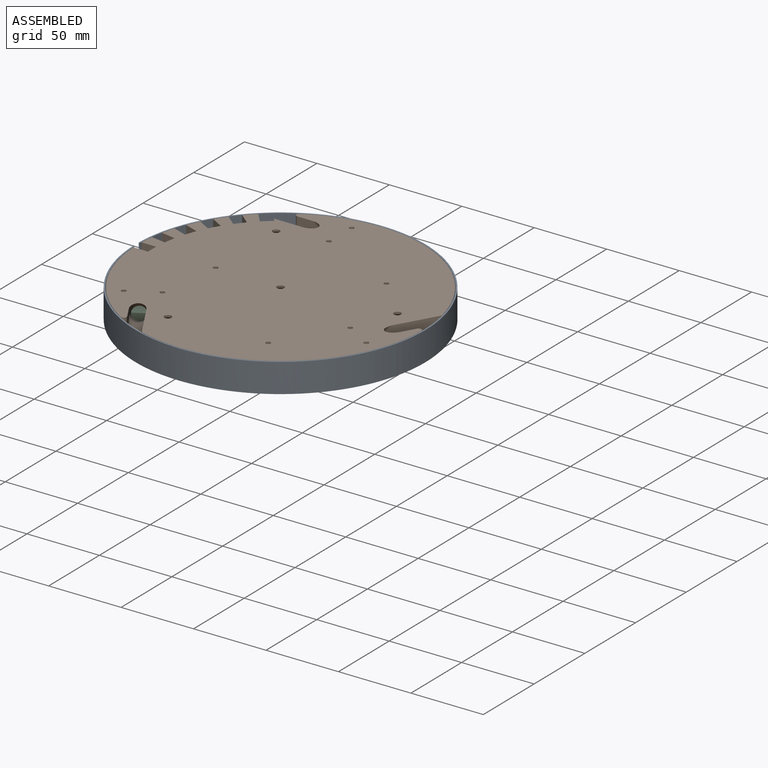
[diagram: assembled view]
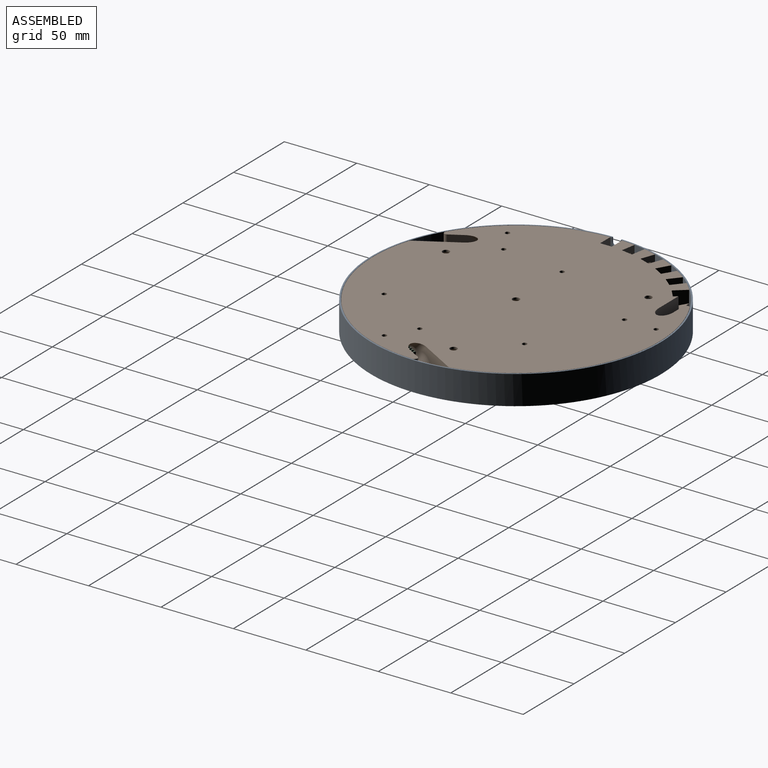
[diagram: assembled view, second angle]
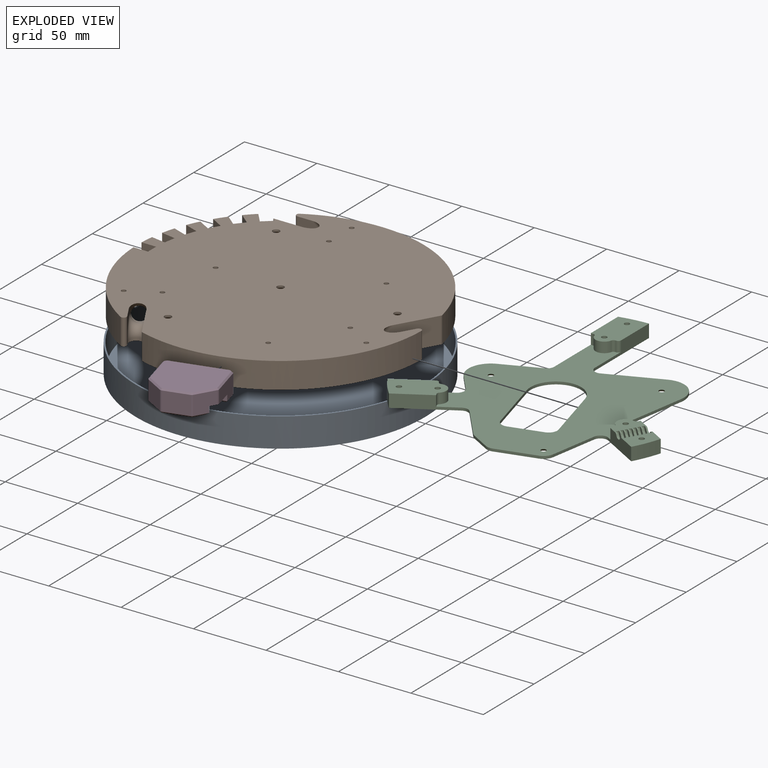
[diagram: exploded view]
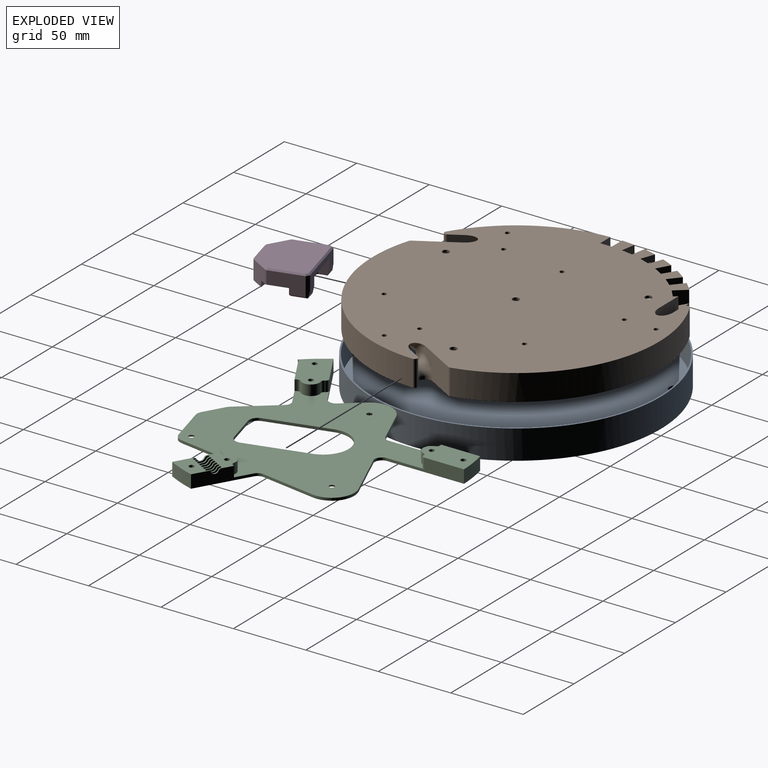
[diagram: exploded view, second angle]
FCSTD DOCUMENT  (FreeCAD 1.0R38641 +468 (Git))
Label: CircularBase
License: All rights reserved
LicenseURL: http://en.wikipedia.org/wiki/All_rights_reserved
objects: Sketcher::SketchObject×25, PartDesign::Pocket×18, PartDesign::Pad×13, PartDesign::SubShapeBinder×10, Part::FeaturePython×10, PartDesign::Hole×5, PartDesign::Fillet×4, PartDesign::PolarPattern×4, PartDesign::Revolution×3, PartDesign::Body×3, PartDesign::SubtractivePipe×2, Assembly::JointGroup×1, App::VarSet×1, App::Link×1, PartDesign::AdditivePipe×1, PartDesign::Plane×1, PartDesign::Mirrored×1, PartDesign::LinearPattern×1, Assembly::AssemblyObject×1
note: 224 computed .brp shape members not serialized (recipe doc carries the construction recipe); baked Part::Feature solids carry a one-line shape summary decoded from their .brp
EXTERNAL_REF file=ShellyDimmerGen1.FCStd obj=Body

FEATURE [Assembly::JointGroup] Joints
FEATURE [App::VarSet] VarSet
  CordDiameter = 7.4
FEATURE [Sketcher::SketchObject] Sketch012
  ArcFitTolerance = 1e-06
  AttachmentSupport = -> [XY_Plane004]
  FullyConstrained = true
  MakeInternals = false
  MapMode = 5
  sketch-geometry (1):
    g0: Circle CenterX=0 CenterY=0 CenterZ=0 NormalX=0 NormalY=0 NormalZ=1 AngleXU=0 Radius=98.8
  constraints (2):
    c: Diameter(g0) = 197.6
    c: Coincident(g0,g-1)
FEATURE [PartDesign::Pad] Pad009
  Direction = (0,0,1)
  Length = 4
  Length2 = 10
  Profile = -> Sketch012
  ReferenceAxis = -> Sketch012 [N_Axis]
  Refine = true
  Reversed = true
  Suppressed = false
  Type = 0
FEATURE [Sketcher::SketchObject] Sketch013
  ArcFitTolerance = 1e-06
  AttachmentOffset = pos=(90,0,0) rot=(0,1,0;1.0472rad)
  AttachmentSupport = -> [XZ_Plane004]
  FullyConstrained = false
  MakeInternals = false
  MapMode = 5
  Placement = pos=(90,0,0) rot=(0.774597,0.447214,0.447214;1.82348rad)
  expr: Constraints[8] = 5 mm
  expr: Constraints[9] = 4 mm + 5 mm
  sketch-geometry (12):
    g0: LineSegment StartX=0 StartY=-18 StartZ=0 EndX=0 EndY=-16 EndZ=0
    g1: ArcOfCircle CenterX=-11 CenterY=-16 CenterZ=0 NormalX=0 NormalY=0 NormalZ=1 AngleXU=0 Radius=11 StartAngle=0 EndAngle=2.24086
    g2: ArcOfCircle CenterX=-22.4891 CenterY=-1.5 CenterZ=0 NormalX=0 NormalY=0 NormalZ=1 AngleXU=0 Radius=7.5 StartAngle=4.71239 EndAngle=5.38245
    g3: LineSegment StartX=-22.4891 StartY=-9 StartZ=0 EndX=-42.4891 EndY=-9 EndZ=0
    g4: LineSegment StartX=0 StartY=-18 StartZ=0 EndX=36.1215 EndY=-18 EndZ=0
    g5: LineSegment StartX=36.1215 StartY=-18 StartZ=0 EndX=35.1191 EndY=0 EndZ=0
    g6: LineSegment StartX=35.1191 StartY=0 StartZ=0 EndX=-8.51939 EndY=-2.7e-15 EndZ=0
    g7: LineSegment StartX=-17.8314 StartY=-7.37838 StartZ=0 EndX=-8.51939 EndY=-2.7e-15 EndZ=0
    g8: LineSegment StartX=-42.4891 StartY=-18 StartZ=0 EndX=-42.4891 EndY=-10 EndZ=0
    g9: LineSegment StartX=-22 StartY=-10 StartZ=0 EndX=-42.4891 EndY=-10 EndZ=0
    g10: LineSegment StartX=-22 StartY=-10 StartZ=0 EndX=-22 EndY=-18 EndZ=0
    g11: LineSegment StartX=-22 StartY=-18 StartZ=0 EndX=-42.4891 EndY=-18 EndZ=0
  constraints (32):
    c: Vertical(g0)
    c: Horizontal(g3)
    c: Distance(g0,g0) = 2
    c: Tangent(g3,g2) = 1.5708
    c: DistanceX(g3,g3) = 20
    c: DistanceY(g0,g-1) = 18
    c: PointOnObject(g0,g-2)
    c: Diameter(g2) = 15
    c: Distance(g1,g-1) = 5
    c: DistanceY(g0,g3) = 9
    c: Tangent(g0,g1) = -1.5708
    c: Tangent(g2,g1) = 1.5708
    c: Coincident(g4,g0)
    c: Horizontal(g4)
    c: Coincident(g5,g4)
    c: PointOnObject(g5,g-1)
    c: Coincident(g6,g5)
    c: PointOnObject(g6,g-1)
    c: Coincident(g7,g6)
    c: Tangent(g7,g1) = 1.5708
    c: Vertical(g8)
    c: PointOnObject(g3,g8)
    c: DistanceY(g8,g3) = 1
    c: Coincident(g9,g8)
    c: Horizontal(g9)
    c: Coincident(g11,g10)
    c: Coincident(g11,g8)
    c: Horizontal(g11)
    c: Vertical(g10)
    c: PointOnObject(g0,g11)
    c: Coincident(g9,g10)
    c: DistanceX(g10,g0) = 22
FEATURE [Sketcher::SketchObject] Sketch014
  ArcFitTolerance = 1e-06
  AttachmentSupport = -> [Pad009]
  ExternalGeometry = -> [Pad009,Sketch013]
  FullyConstrained = true
  MakeInternals = false
  MapMode = 5
  Placement = pos=(0,0,-4) rot=(1,0,0;3.14159rad)
  sketch-geometry (13):
    g0: LineSegment StartX=58.3631 StartY=30.7967 StartZ=0 EndX=60.4854 EndY=27.1208 EndZ=0
    g1: LineSegment StartX=84.1922 StartY=45.7091 StartZ=0 EndX=58.3631 EndY=30.7967 EndZ=0
    g2: ArcOfCircle CenterX=0 CenterY=0 CenterZ=0 NormalX=0 NormalY=0 NormalZ=1 AngleXU=0 Radius=95.8 StartAngle=0.497386 EndAngle=1.80639
    g3: ArcOfCircle CenterX=63.4854 CenterY=21.9246 CenterZ=0 NormalX=0 NormalY=0 NormalZ=1 AngleXU=0 Radius=6 StartAngle=2.0944 EndAngle=5.23599
    g4: LineSegment StartX=66.4854 StartY=16.7285 StartZ=0 EndX=93.8944 EndY=-30.7453 EndZ=0
    g5: Circle [constr] CenterX=63.4854 CenterY=21.9246 CenterZ=0 NormalX=0 NormalY=0 NormalZ=1 AngleXU=0 Radius=1.5
    g6: LineSegment [constr] StartX=73.8777 StartY=27.9246 StartZ=0 EndX=63.4854 EndY=21.9246 EndZ=0
    g7: ArcOfCircle CenterX=0 CenterY=0 CenterZ=0 NormalX=0 NormalY=0 NormalZ=1 AngleXU=0 Radius=98.8 StartAngle=5.96674 EndAngle=8.06114
    g8: LineSegment StartX=-20.321 StartY=96.6876 StartZ=0 EndX=-22.3613 EndY=93.1537 EndZ=0
    g9: LineSegment [constr] StartX=0 StartY=0 StartZ=0 EndX=93.8944 EndY=-30.7453 EndZ=0
    g10: LineSegment [constr] StartX=0 StartY=0 StartZ=0 EndX=-20.321 EndY=96.6876 EndZ=0
    g11: LineSegment [constr] StartX=0 StartY=0 StartZ=0 EndX=58.3631 EndY=30.7967 EndZ=0
    g12: LineSegment [constr] StartX=0 StartY=0 StartZ=0 EndX=-55.8523 EndY=35.1456 EndZ=0
  constraints (36):
    c: Coincident(g1,g0)
    c: Perpendicular(g-4,g1)
    c: Perpendicular(g0,g1)
    c: Coincident(g1,g2)
    c: Coincident(g2,g-1)
    c: PointOnObject(g-5,g1)
    c: Distance(g0,g-5) = 12
    c: PointOnObject(g3,g0)
    c: PointOnObject(g3,g0)
    c: Coincident(g3,g0)
    c: Coincident(g4,g3)
    c: Perpendicular(g3,g4)
    c: Radius(g3) = 6
    c: Coincident(g5,g3)
    c: Diameter(g5) = 3
    c: Symmetric(g-5,g-5,g6)
    c: Coincident(g6,g3)
    c: Perpendicular(g-5,g6)
    c: Coincident(g7,g2)
    c: Coincident(g7,g4)
    c: PointOnObject(g4,g-3)
    c: Coincident(g8,g7)
    c: Coincident(g8,g2)
    c: Coincident(g9,g2)
    c: Coincident(g9,g4)
    c: Angle(g4,g9) = 0.730755  'Reference'
    c: Coincident(g10,g2)
    c: Coincident(g10,g7)
    c: Angle(g9,g10) = 2.0944
    c: Distance(g1,g-3) = 3
    c: Coincident(g11,g2)
    c: Coincident(g11,g0)
    c: Coincident(g12,g2)
    c: Angle(g11,g12) = 2.0944
    c: Equal(g11,g12)
    c: PointOnObject(g12,g8)
FEATURE [PartDesign::Pad] Pad010
  BaseFeature = -> Pad009
  Direction = (0,0,-1)
  Length = 14
  Length2 = 10
  Profile = -> Sketch014
  ReferenceAxis = -> Sketch014 [N_Axis]
  Refine = true
  Suppressed = false
  Type = 0
  UpToShape = -> [Sketch013]
FEATURE [Sketcher::SketchObject] Sketch015
  ArcFitTolerance = 1e-06
  AttachmentSupport = -> [Pad010]
  ExternalGeometry = -> [Sketch013]
  FullyConstrained = true
  MakeInternals = false
  MapMode = 5
  Placement = pos=(1.25544,2.17448,0) rot=(0.935113,-0.250563,-0.250563;1.63783rad)
  sketch-geometry (1):
    g0: Circle CenterX=77.9423 CenterY=-9 CenterZ=0 NormalX=0 NormalY=0 NormalZ=1 AngleXU=0 Radius=5
  constraints (2):
    c: Coincident(g0,g-3)
    c: Diameter(g0) = 10
FEATURE [PartDesign::SubtractivePipe] SubtractivePipe004
  AuxilleryCurvelinear = true
  AuxillerySpineTangent = false
  BaseFeature = -> Pad010
  Binormal = (0,0,0)
  Mode = 0
  Profile = -> Sketch015
  Refine = true
  Spine = -> Sketch013 [Edge8,Edge7,Edge1]
  SpineTangent = false
  Suppressed = false
  Transformation = 0
  Transition = 0
FEATURE [PartDesign::SubtractivePipe] SubtractivePipe005
  AuxilleryCurvelinear = true
  AuxillerySpineTangent = false
  BaseFeature = -> SubtractivePipe004
  Binormal = (0,0,0)
  Mode = 0
  Profile = -> Sketch015
  Refine = true
  Spine = -> Sketch013 [Edge8,Edge7,Edge6,Edge5]
  SpineTangent = false
  Suppressed = false
  Transformation = 0
  Transition = 0
FEATURE [PartDesign::Pocket] Pocket019
  BaseFeature = -> SubtractivePipe005
  Direction = (-0.866025,0.5,-1e-16)
  Length = 10
  Length2 = 5
  Midplane = true
  Profile = -> Sketch013 [Edge1,Edge6,Edge2,Edge5,Edge4,Edge3]
  ReferenceAxis = -> Sketch013 [N_Axis]
  Refine = true
  Suppressed = false
  Type = 0
  expr: Length = 10
FEATURE [Sketcher::SketchObject] Sketch019
  ArcFitTolerance = 1e-06
  AttachmentSupport = -> [Pocket019]
  ExternalGeometry = -> [Pocket019]
  FullyConstrained = true
  MakeInternals = false
  MapMode = 5
  Placement = pos=(0,0,-18) rot=(1,0,0;3.14159rad)
  sketch-geometry (6):
    g0: LineSegment StartX=58.3631 StartY=30.7967 StartZ=0 EndX=84.1922 EndY=45.7091 EndZ=0
    g1: LineSegment StartX=68.3631 StartY=13.4762 StartZ=0 EndX=91.8977 EndY=27.0638 EndZ=0
    g2: ArcOfCircle CenterX=0 CenterY=0 CenterZ=0 NormalX=0 NormalY=0 NormalZ=1 AngleXU=0 Radius=95.8 StartAngle=0.286403 EndAngle=0.497386
    g3: ArcOfCircle CenterX=63.4854 CenterY=21.9246 CenterZ=0 NormalX=0 NormalY=0 NormalZ=1 AngleXU=0 Radius=6 StartAngle=2.09439 EndAngle=5.23599
    g4: LineSegment StartX=58.3631 StartY=30.7967 StartZ=0 EndX=60.4854 EndY=27.1208 EndZ=0
    g5: LineSegment StartX=66.4854 StartY=16.7285 StartZ=0 EndX=68.3631 EndY=13.4762 EndZ=0
  constraints (15):
    c: Coincident(g2,g-1)
    c: Coincident(g2,g1)
    c: Coincident(g2,g0)
    c: Coincident(g4,g0)
    c: Coincident(g4,g3)
    c: Coincident(g5,g3)
    c: Coincident(g5,g1)
    c: Coincident(g0,g-4)
    c: Coincident(g3,g-5)
    c: Coincident(g0,g-4)
    c: Coincident(g3,g-6)
    c: PointOnObject(g1,g-6)
    c: Equal(g-5,g3)
    c: PointOnObject(g-7,g1)
    c: PointOnObject(g-7,g1)
FEATURE [PartDesign::Pocket] Pocket
  BaseFeature = -> Pocket019
  Direction = (0,0,1)
  Length = 9
  Length2 = 5
  Profile = -> Sketch019
  ReferenceAxis = -> Sketch019 [N_Axis]
  Refine = true
  Suppressed = false
  Type = 0
  expr: Length = 4 mm + 5 mm
FEATURE [Sketcher::SketchObject] Sketch018
  ArcFitTolerance = 1e-06
  AttachmentSupport = -> [Pocket]
  ExternalGeometry = -> [Pocket]
  FullyConstrained = true
  MakeInternals = false
  MapMode = 5
  Placement = pos=(0,0,-4) rot=(1,0,0;3.14159rad)
  sketch-geometry (3):
    g0: LineSegment [constr] StartX=94.3301 StartY=2.5 StartZ=0 EndX=74.4115 EndY=-9 EndZ=0
    g1: Circle CenterX=74.4115 CenterY=-9 CenterZ=0 NormalX=0 NormalY=0 NormalZ=1 AngleXU=0 Radius=6
    g2: Circle CenterX=0 CenterY=0 CenterZ=0 NormalX=0 NormalY=0 NormalZ=1 AngleXU=0 Radius=6
  constraints (7):
    c: Diameter(g1) = 12
    c: Coincident(g1,g0)
    c: Coincident(g0,g-3)
    c: PointOnObject(g-3,g0)
    c: Coincident(g2,g-1)
    c: Equal(g2,g1)
    c: Tangent(g1,g-4)
FEATURE [Sketcher::SketchObject] Sketch020
  ArcFitTolerance = 1e-06
  AttachmentSupport = -> [Pocket]
  ExternalGeometry = -> [Pocket]
  FullyConstrained = false
  MakeInternals = false
  MapMode = 5
  Placement = pos=(0,0,-9) rot=(1,0,0;3.14159rad)
  sketch-geometry (5):
    g0: GeomPoint X=68.4685 Y=25.2665 Z=0
    g1: GeomPoint X=78.0856 Y=30.6364 Z=0
    g2: LineSegment [constr] StartX=78.0856 StartY=30.6364 StartZ=0 EndX=82.4157 EndY=33.1364 EndZ=0
    g3: Circle CenterX=63.4854 CenterY=21.9246 CenterZ=0 NormalX=0 NormalY=0 NormalZ=1 AngleXU=0 Radius=1.5
    g4: Circle CenterX=82.4157 CenterY=33.1364 CenterZ=0 NormalX=0 NormalY=0 NormalZ=1 AngleXU=0 Radius=1.5
  constraints (7):
    c: Coincident(g2,g1)
    c: Coincident(g4,g2)
    c: Equal(g4,g3)
    c: Symmetric(g-3,g-3,g1)
    c: Perpendicular(g-3,g2)
    c: Coincident(g-4,g3)
    c: Distance(g2,g2) = 5
FEATURE [PartDesign::Hole] Hole
  BaseFeature = -> Pocket
  CustomThreadClearance = 0
  Depth = 565.656
  DepthType = 1
  Diameter = 3.2
  DrillForDepth = false
  DrillPoint = 1
  DrillPointAngle = 118
  HoleCutCountersinkAngle = 90
  HoleCutCustomValues = false
  HoleCutDepth = 0
  HoleCutDiameter = 6.1
  HoleCutType = 0
  ModelThread = false
  Profile = -> Sketch020
  Refine = true
  Suppressed = false
  Tapered = false
  TaperedAngle = 90
  ThreadClass = 0
  ThreadDepth = 565.656
  ThreadDepthType = 0
  ThreadDirection = 0
  ThreadFit = 1
  ThreadSize = 9
  ThreadType = 1
  Threaded = false
  UseCustomThreadClearance = false
FEATURE [Sketcher::SketchObject] Sketch026
  ArcFitTolerance = 1e-06
  AttachmentSupport = -> [XY_Plane]
  FullyConstrained = true
  MakeInternals = false
  MapMode = 5
  sketch-geometry (2):
    g0: Circle CenterX=0 CenterY=0 CenterZ=0 NormalX=0 NormalY=0 NormalZ=1 AngleXU=0 Radius=99
    g1: Circle CenterX=0 CenterY=0 CenterZ=0 NormalX=0 NormalY=0 NormalZ=1 AngleXU=0 Radius=100
  constraints (4):
    c: Coincident(g0,g-1)
    c: Coincident(g1,g0)
    c: Diameter(g0) = 198
    c: Diameter(g1) = 200
FEATURE [PartDesign::Pad] Pad014
  Direction = (0,0,1)
  Length = 18.1
  Length2 = 10
  Profile = -> Sketch026
  ReferenceAxis = -> Sketch026 [N_Axis]
  Refine = true
  Reversed = true
  Suppressed = false
  Type = 0
FEATURE [PartDesign::Pad] Pad015
  BaseFeature = -> Pad014
  Direction = (0,0,1)
  Length = 2
  Length2 = 10
  Profile = -> Pad014 [Edge3]
  Refine = true
  Reversed = true
  Suppressed = false
  Type = 0
FEATURE [Sketcher::SketchObject] Sketch028
  ArcFitTolerance = 1e-06
  AttachmentOffset = pos=(0,2,-100) rot=(1,0,0;0.174533rad)
  AttachmentSupport = -> [YZ_Plane004]
  FullyConstrained = true
  MakeInternals = false
  MapMode = 5
  Placement = pos=(-100,0,2) rot=(0.60812,0.60812,0.510274;2.19793rad)
  sketch-geometry (4):
    g0: LineSegment StartX=-4 StartY=0 StartZ=0 EndX=-4 EndY=-10 EndZ=0
    g1: LineSegment StartX=-4 StartY=-10 StartZ=0 EndX=4 EndY=-10 EndZ=0
    g2: LineSegment StartX=4 StartY=-10 StartZ=0 EndX=4 EndY=0 EndZ=0
    g3: LineSegment StartX=4 StartY=0 StartZ=0 EndX=-4 EndY=0 EndZ=0
  constraints (11):
    c: Coincident(g0,g1)
    c: Coincident(g1,g2)
    c: Coincident(g2,g3)
    c: Vertical(g0)
    c: Vertical(g2)
    c: Horizontal(g1)
    c: Horizontal(g3)
    c: Distance(g0,g2) = 8
    c: Distance(g1,g3) = 10
    c: Coincident(g3,g0)
    c: Symmetric(g0,g2,g-1)
FEATURE [Sketcher::SketchObject] Sketch029
  ArcFitTolerance = 1e-06
  AttachmentSupport = -> [YZ_Plane]
  FullyConstrained = true
  MakeInternals = false
  MapMode = 5
  Placement = pos=(0,0,0) rot=(0.57735,0.57735,0.57735;2.0944rad)
  sketch-geometry (5):
    g0: ArcOfCircle CenterX=1 CenterY=-3 CenterZ=0 NormalX=0 NormalY=0 NormalZ=1 AngleXU=0 Radius=2 StartAngle=4.71239 EndAngle=6.28319
    g1: LineSegment StartX=1 StartY=-5 StartZ=0 EndX=0 EndY=-5 EndZ=0
    g2: LineSegment StartX=3 StartY=-3 StartZ=0 EndX=3 EndY=0 EndZ=0
    g3: LineSegment StartX=0 StartY=-5 StartZ=0 EndX=0 EndY=0 EndZ=0
    g4: LineSegment StartX=0 StartY=0 StartZ=0 EndX=3 EndY=0 EndZ=0
  constraints (13):
    c: PointOnObject(g1,g-2)
    c: PointOnObject(g2,g-1)
    c: Vertical(g2)
    c: Tangent(g1,g0) = 1.5708
    c: Tangent(g2,g0) = -1.5708
    c: Coincident(g3,g1)
    c: Coincident(g3,g-1)
    c: Coincident(g4,g3)
    c: Coincident(g4,g2)
    c: Horizontal(g1)
    c: DistanceX(g4,g4) = 3
    c: DistanceY(g3,g3) = 5
    c: Diameter(g0) = 4
FEATURE [App::Link] Housing  label="ShellyDimmerGen1"
  LinkClaimChild = true
  LinkPlacement = pos=(9.5763,-35.7393,-1) rot=(0.991445,0.130526,0;3.14159rad)
  LinkedObject = -> <external ShellyDimmerGen1.FCStd>#Body
  Placement = pos=(9.5763,-35.7393,-1) rot=(0.991445,0.130526,0;3.14159rad)
FEATURE [Sketcher::SketchObject] Sketch033
  ArcFitTolerance = 1e-06
  FullyConstrained = true
  MakeInternals = false
  MapMode = 5
  Placement = pos=(0,0,-18.1) rot=(0,0,1;0rad)
  sketch-geometry (1):
    g0: Circle CenterX=90 CenterY=-1.69e-14 CenterZ=0 NormalX=0 NormalY=0 NormalZ=1 AngleXU=0 Radius=3.9
  constraints (2):
    c: Coincident(g0,g-3)
    c: Distance(g-3,g0) = 0.2
FEATURE [PartDesign::SubShapeBinder] Binder
  BindCopyOnChange = 0
  BindMode = 0
  ClaimChildren = false
  Context = -> Assembly [Body003.Binder.]
  Fuse = false
  MakeFace = true
  Offset = 0.3
  OffsetFill = false
  OffsetIntersection = false
  OffsetJoinType = 1
  OffsetOpenResult = false
  PartialLoad = false
  Refine = true
  Relative = true
  Support = -> [Housing[Pocket002.Edge101,Pocket002.Edge91,Pocket002.Edge95,Pocket002.Edge106,Pocket002.Edge65,Pocket002.Edge73,Pocket002.Edge76,Pocket002.Edge81]]
  _Version = 2
FEATURE [PartDesign::SubShapeBinder] Binder011
  BindCopyOnChange = 0
  BindMode = 0
  ClaimChildren = false
  Context = -> Assembly [Body003.Binder011.]
  Fuse = false
  MakeFace = true
  Offset = 2
  OffsetFill = false
  OffsetIntersection = false
  OffsetJoinType = 1
  OffsetOpenResult = false
  PartialLoad = false
  Refine = true
  Relative = true
  Support = -> [Binder]
  _Version = 2
FEATURE [PartDesign::SubShapeBinder] Binder012
  BindCopyOnChange = 0
  BindMode = 0
  ClaimChildren = false
  Context = -> Assembly [Body003.Binder012.]
  Fuse = false
  MakeFace = true
  OffsetFill = false
  OffsetIntersection = false
  OffsetJoinType = 1
  OffsetOpenResult = false
  PartialLoad = false
  Refine = true
  Relative = true
  Support = -> [Housing[Pocket002.Face1]]
  _Version = 2
FEATURE [PartDesign::SubShapeBinder] Binder013
  BindCopyOnChange = 0
  BindMode = 0
  ClaimChildren = false
  Context = -> Assembly [Body003.Binder013.]
  Fuse = false
  MakeFace = true
  OffsetFill = false
  OffsetIntersection = false
  OffsetJoinType = 1
  OffsetOpenResult = false
  PartialLoad = false
  Refine = true
  Relative = true
  Support = -> [Housing[Pocket002.Face53]]
  _Version = 2
FEATURE [Sketcher::SketchObject] Sketch
  ArcFitTolerance = 1e-06
  AttachmentSupport = -> [Hole]
  ExternalGeometry = -> [Sketch013]
  FullyConstrained = true
  MakeInternals = false
  MapMode = 5
  Placement = pos=(0,0,-18) rot=(1,0,0;3.14159rad)
  sketch-geometry (1):
    g0: Circle CenterX=84 CenterY=10.3923 CenterZ=0 NormalX=0 NormalY=0 NormalZ=1 AngleXU=0 Radius=4
  constraints (3):
    c: Diameter(g0) = 8
    c: PointOnObject(g0,g-3)
    c: Distance(g-3,g0) = 12
FEATURE [PartDesign::Pocket] Pocket049
  BaseFeature = -> Hole
  Direction = (0,0,1)
  Length = 4
  Length2 = 5
  Profile = -> Sketch
  ReferenceAxis = -> Sketch [N_Axis]
  Refine = true
  Suppressed = false
  Type = 0
FEATURE [PartDesign::Fillet] Fillet
  Base = -> Pocket049 [Edge67,Edge66,Edge40,Edge10,Edge9]
  BaseFeature = -> Pocket049
  Radius = 2
  Refine = true
  SupportTransform = false
  Suppressed = false
  UseAllEdges = false
FEATURE [PartDesign::Hole] Hole006
  BaseFeature = -> Fillet
  CustomThreadClearance = 0
  Depth = 565.618
  DepthType = 1
  Diameter = 4.8
  DrillForDepth = false
  DrillPoint = 1
  DrillPointAngle = 118
  HoleCutCountersinkAngle = 90
  HoleCutCustomValues = false
  HoleCutDepth = 0
  HoleCutDiameter = 10
  HoleCutType = 2
  ModelThread = false
  Profile = -> Sketch018
  Refine = true
  Suppressed = false
  Tapered = false
  TaperedAngle = 90
  ThreadClass = 0
  ThreadDepth = 565.618
  ThreadDepthType = 0
  ThreadDirection = 0
  ThreadFit = 2
  ThreadSize = 11
  ThreadType = 1
  Threaded = false
  UseCustomThreadClearance = false
FEATURE [PartDesign::PolarPattern] PolarPattern
  Angle = 360
  Axis = -> Sketch014 [N_Axis]
  BaseFeature = -> Hole006
  Mode = 0
  Occurrences = 3
  Offset = 120
  Originals = -> [Pad010,SubtractivePipe004,SubtractivePipe005,Pocket019,Pocket,Hole,Pocket049,Fillet,Hole006]
  Refine = true
  Suppressed = false
  TransformMode = 0
FEATURE [PartDesign::Pocket] Pocket030
  BaseFeature = -> PolarPattern
  Direction = (-0.984808,0,0.173648)
  Length = 50
  Length2 = 5
  Profile = -> Sketch028
  ReferenceAxis = -> Sketch028 [N_Axis]
  Refine = true
  Reversed = true
  Suppressed = false
  Type = 0
FEATURE [PartDesign::PolarPattern] PolarPattern004
  Angle = 360
  Axis = -> Z_Axis004
  BaseFeature = -> Pocket030
  Mode = 1
  Occurrences = 6
  Offset = 10
  Originals = -> [Pocket030]
  Refine = true
  Reversed = true
  Suppressed = false
  TransformMode = 0
FEATURE [PartDesign::Pad] Pad022
  BaseFeature = -> PolarPattern004
  Direction = (8.74228e-08,3.6e-15,1)
  Length = 10
  Length2 = 10
  Profile = -> Binder011
  Refine = true
  Suppressed = false
  Type = 3
  UpToFace = -> Binder012 [Face1]
FEATURE [PartDesign::Pocket] Pocket046
  BaseFeature = -> Pad022
  Direction = (8.74228e-08,3.6e-15,1)
  Length = 5
  Length2 = 5
  Profile = -> Binder
  Refine = true
  Reversed = true
  Suppressed = false
  Type = 1
FEATURE [PartDesign::Pocket] Pocket047
  BaseFeature = -> Pocket046
  Direction = (8.74228e-08,3.6e-15,1)
  Length = 0
  Length2 = 5
  Profile = -> Pocket046 [Face142]
  Refine = true
  Suppressed = false
  Type = 3
  UpToFace = -> Binder013 [Face1]
FEATURE [Sketcher::SketchObject] Sketch034
  ArcFitTolerance = 1e-06
  AttachmentSupport = -> [Pocket047]
  ExternalGeometry = -> [Pocket047]
  FullyConstrained = true
  MakeInternals = false
  MapMode = 5
  Placement = pos=(-1.41625e-06,-6.38e-14,-16.2) rot=(1,0,0;3.14159rad)
  sketch-geometry (5):
    g0: LineSegment StartX=-6.47379 StartY=37.6587 StartZ=0 EndX=24.4358 EndY=29.3765 EndZ=0
    g1: LineSegment StartX=24.4358 StartY=29.3765 StartZ=0 EndX=24.9535 EndY=31.3084 EndZ=0
    g2: LineSegment StartX=24.9535 StartY=31.3084 StartZ=0 EndX=-5.95616 EndY=39.5906 EndZ=0
    g3: LineSegment StartX=-5.95616 StartY=39.5906 StartZ=0 EndX=-6.47379 EndY=37.6587 EndZ=0
    g4: GeomPoint [constr] X=8.98102 Y=33.5176 Z=0
  constraints (12):
    c: Coincident(g0,g1)
    c: Coincident(g1,g2)
    c: Coincident(g2,g3)
    c: Coincident(g3,g0)
    c: PointOnObject(g0,g-4)
    c: PointOnObject(g2,g-3)
    c: PointOnObject(g1,g-3)
    c: Perpendicular(g1,g0)
    c: Perpendicular(g0,g3)
    c: Symmetric(g0,g0,g4)
    c: Symmetric(g-4,g-4,g4)
    c: Distance(g0,g0) = 32
FEATURE [PartDesign::Pocket] Pocket048
  BaseFeature = -> Pocket047
  Direction = (8.74228e-08,3.9e-15,1)
  Length = 0
  Length2 = 5
  Profile = -> Sketch034
  ReferenceAxis = -> Sketch034 [N_Axis]
  Refine = true
  Suppressed = false
  Type = 3
  UpToFace = -> Pocket047 [Face2]
FEATURE [Sketcher::SketchObject] Sketch037
  ArcFitTolerance = 1e-06
  AttachmentSupport = -> [Pocket048]
  ExternalGeometry = -> [Pocket048]
  FullyConstrained = true
  MakeInternals = false
  MapMode = 5
  Placement = pos=(-1.41625e-06,-6.38e-14,-16.2) rot=(1,0,0;3.14159rad)
  sketch-geometry (7):
    g0: Circle CenterX=37.02 CenterY=65.0561 CenterZ=0 NormalX=0 NormalY=0 NormalZ=1 AngleXU=0 Radius=4.67918
    g1: LineSegment StartX=28.331 StartY=72.2285 StartZ=0 EndX=38.231 EndY=69.5758 EndZ=0
    g2: LineSegment StartX=38.887 StartY=53.945 StartZ=0 EndX=41.5397 EndY=63.845 EndZ=0
    g3: ArcOfCircle CenterX=37.02 CenterY=65.0561 CenterZ=0 NormalX=0 NormalY=0 NormalZ=1 AngleXU=0 Radius=4.67918 StartAngle=6.02139 EndAngle=7.59218
    g4: LineSegment StartX=30.942 StartY=70.225 StartZ=0 EndX=38.4575 EndY=57.2079 EndZ=0
    g5: ArcOfCircle CenterX=27.2181 CenterY=68.075 CenterZ=0 NormalX=0 NormalY=0 NormalZ=1 AngleXU=0 Radius=4.3 StartAngle=0.523599 EndAngle=1.309
    g6: ArcOfCircle CenterX=34.7336 CenterY=55.0579 CenterZ=0 NormalX=0 NormalY=0 NormalZ=1 AngleXU=0 Radius=4.3 StartAngle=6.02139 EndAngle=6.80678
  constraints (15):
    c: Tangent(g3,g2) = -1.5708
    c: Tangent(g3,g1) = 1.5708
    c: Equal(g3,g0)
    c: Coincident(g3,g0)
    c: Tangent(g0,g-3)
    c: Coincident(g6,g4)
    c: Equal(g6,g-5)
    c: Coincident(g4,g-5)
    c: Coincident(g2,g-5)
    c: Coincident(g5,g4)
    c: Equal(g-4,g5)
    c: Coincident(g4,g-4)
    c: Tangent(g5,g1) = 1.5708
    c: Tangent(g6,g2) = -1.5708
    c: Coincident(g-4,g1)
FEATURE [Sketcher::SketchObject] Sketch038
  ArcFitTolerance = 1e-06
  AttachmentSupport = -> [Pocket048]
  ExternalGeometry = -> [Sketch037]
  FullyConstrained = true
  MakeInternals = false
  MapMode = 5
  Placement = pos=(0,0,-4) rot=(1,0,0;3.14159rad)
  sketch-geometry (6):
    g0: Circle CenterX=-45 CenterY=-0.281238 CenterZ=0 NormalX=0 NormalY=0 NormalZ=1 AngleXU=0 Radius=12.5
    g1: Circle CenterX=46.2028 CenterY=-38.2793 CenterZ=0 NormalX=0 NormalY=0 NormalZ=1 AngleXU=0 Radius=12.5
    g2: LineSegment [constr] StartX=-45 StartY=-0.281238 StartZ=0 EndX=0 EndY=0 EndZ=0
    g3: LineSegment [constr] StartX=0 StartY=0 StartZ=0 EndX=46.2028 EndY=-38.2793 EndZ=0
    g4: LineSegment [constr] StartX=0 StartY=0 StartZ=0 EndX=37.02 EndY=65.0561 EndZ=0
    g5: LineSegment StartX=-45 StartY=-0.281238 StartZ=0 EndX=46.2028 EndY=-38.2793 EndZ=0
  constraints (14):
    c: Coincident(g2,g0)
    c: Coincident(g2,g-1)
    c: Coincident(g3,g2)
    c: Coincident(g3,g1)
    c: Coincident(g4,g2)
    c: Coincident(g4,g-3)
    c: Angle(g3,g4) = 1.74533
    c: Angle(g4,g2) = 2.0944
    c: Equal(g1,g0)
    c: Diameter(g0) = 25
    c: DistanceX(g2,g2) = 45
    c: Distance(g3,g3) = 60
    c: Coincident(g5,g0)
    c: Coincident(g5,g1)
FEATURE [PartDesign::Pad] Pad023
  BaseFeature = -> Pocket048
  Direction = (-8.74228e-08,-3.9e-15,-1)
  Length = 10
  Length2 = 10
  Profile = -> Sketch037 [Edge5,Edge6,Edge7,Edge2,Edge3,Edge4]
  ReferenceAxis = -> Sketch037 [N_Axis]
  Refine = true
  Reversed = true
  Suppressed = false
  Type = 3
  UpToFace = -> Pocket048 [Face116]
FEATURE [PartDesign::Fillet] Fillet001
  Base = -> Pad023 [Edge296,Edge282,Edge283,Edge268]
  BaseFeature = -> Pad023
  Radius = 2
  Refine = true
  SupportTransform = false
  Suppressed = false
  UseAllEdges = false
FEATURE [Sketcher::SketchObject] Sketch039
  ArcFitTolerance = 1e-06
  AttachmentSupport = -> [Fillet001]
  ExternalGeometry = -> [Fillet001]
  FullyConstrained = true
  MakeInternals = false
  MapMode = 5
  Placement = pos=(-15.4548,-4.1411,1.3511e-06) rot=(0.476905,0.621515,0.621515;2.25159rad)
  sketch-geometry (4):
    g0: LineSegment StartX=-34.7 StartY=-16.2 StartZ=0 EndX=-31.7 EndY=-16.2 EndZ=0
    g1: LineSegment StartX=-31.7 StartY=-16.2 StartZ=0 EndX=-31.7 EndY=-15.2 EndZ=0
    g2: LineSegment StartX=-34.7 StartY=-10.6174 StartZ=0 EndX=-34.7 EndY=-16.2 EndZ=0
    g3: ArcOfCircle CenterX=-29.7 CenterY=-10.6174 CenterZ=0 NormalX=0 NormalY=0 NormalZ=1 AngleXU=0 Radius=5 StartAngle=3.14159 EndAngle=4.30087
  constraints (11):
    c: Coincident(g0,g1)
    c: Coincident(g2,g0)
    c: Horizontal(g0)
    c: Vertical(g1)
    c: Vertical(g2)
    c: Distance(g1,g2) = 3
    c: Coincident(g0,g-3)
    c: Distance(g1,g1) = 1
    c: Coincident(g3,g1)
    c: Tangent(g3,g2) = -1.5708
    c: Diameter(g3) = 10
FEATURE [PartDesign::AdditivePipe] AdditivePipe
  AuxilleryCurvelinear = true
  AuxillerySpineTangent = false
  BaseFeature = -> Fillet001
  Binormal = (0,0,0)
  Mode = 0
  Profile = -> Sketch039
  Refine = true
  Spine = -> Fillet001 [Edge77,Edge81,Edge85,Edge93,Edge97,Edge101,Edge105,Edge109,Edge113,Edge116,Edge115,Edge111,Edge107,Edge103,Edge98]
  SpineTangent = false
  Suppressed = false
  Transformation = 0
  Transition = 0
FEATURE [PartDesign::Plane] DatumPlane
  AttachmentOffset = pos=(0,0,0) rot=(0,1,0;1.5708rad)
  AttachmentSupport = -> [Sketch038]
  Length = 61.4354
  MapMode = 45
  Placement = pos=(0.6014,19.2802,-4) rot=(-0.639598,0.426413,0.639598;2.33546rad)
  ResizeMode = 0
  Width = 76.8192
FEATURE [Sketcher::SketchObject] Sketch044
  ArcFitTolerance = 1e-06
  AttachmentSupport = -> [DatumPlane]
  ExternalGeometry = -> [Pocket048,Sketch038]
  FullyConstrained = true
  MakeInternals = false
  MapMode = 5
  Placement = pos=(0.6014,19.2802,-4) rot=(0.639598,-0.426413,-0.639598;3.94773rad)
  sketch-geometry (6):
    g0: LineSegment StartX=-8.4e-15 StartY=49.4009 StartZ=0 EndX=12.2 EndY=49.4009 EndZ=0
    g1: LineSegment StartX=-8.4e-15 StartY=49.4009 StartZ=0 EndX=-6.2e-15 EndY=36.9009 EndZ=0
    g2: LineSegment StartX=-6.2e-15 StartY=36.9009 StartZ=0 EndX=6.61742 EndY=36.9009 EndZ=0
    g3: LineSegment StartX=12.2 StartY=49.4009 StartZ=0 EndX=12.2 EndY=33.9009 EndZ=0
    g4: LineSegment StartX=12.2 StartY=33.9009 StartZ=0 EndX=11.2 EndY=33.9009 EndZ=0
    g5: ArcOfCircle CenterX=6.61742 CenterY=31.9009 CenterZ=0 NormalX=0 NormalY=0 NormalZ=1 AngleXU=0 Radius=5 StartAngle=0.411517 EndAngle=1.5708
  constraints (16):
    c: Symmetric(g-4,g-4,g0)
    c: PointOnObject(g0,g-3)
    c: Perpendicular(g0,g-4)
    c: Coincident(g1,g0)
    c: Coincident(g1,g-4)
    c: Coincident(g2,g1)
    c: Horizontal(g2)
    c: Coincident(g3,g0)
    c: Vertical(g3)
    c: Coincident(g4,g3)
    c: Coincident(g5,g4)
    c: Perpendicular(g4,g3)
    c: Tangent(g5,g2) = 1.5708
    c: Diameter(g5) = 10
    c: DistanceY(g3,g2) = 3
    c: DistanceX(g4,g4) = 1
FEATURE [PartDesign::Hole] Hole004
  BaseFeature = -> AdditivePipe
  CustomThreadClearance = 0
  Depth = 565.608
  DepthType = 1
  Diameter = 3.2
  DrillForDepth = false
  DrillPoint = 1
  DrillPointAngle = 118
  HoleCutCountersinkAngle = 90
  HoleCutCustomValues = false
  HoleCutDepth = 0
  HoleCutDiameter = 6.1
  HoleCutType = 0
  ModelThread = false
  Profile = -> Sketch037 [Edge1]
  Refine = true
  Suppressed = false
  Tapered = false
  TaperedAngle = 90
  ThreadClass = 0
  ThreadDepth = 565.608
  ThreadDepthType = 0
  ThreadDirection = 0
  ThreadFit = 1
  ThreadSize = 9
  ThreadType = 1
  Threaded = false
  UseCustomThreadClearance = false
FEATURE [PartDesign::Revolution] Revolution
  Angle = 360
  Angle2 = 60
  Axis = (0,0,-1)
  Base = (-45,0.281238,-4)
  BaseFeature = -> Hole004
  Profile = -> Sketch044
  ReferenceAxis = -> Sketch038 [Edge1]
  Refine = true
  Reversed = true
  Suppressed = false
  Type = 0
FEATURE [Sketcher::SketchObject] Sketch045
  ArcFitTolerance = 1e-06
  AttachmentSupport = -> [DatumPlane]
  ExternalGeometry = -> [Revolution,Sketch038]
  FullyConstrained = true
  MakeInternals = false
  MapMode = 5
  Placement = pos=(0.6014,19.2802,-4) rot=(0.639598,-0.426413,-0.639598;3.94773rad)
  sketch-geometry (6):
    g0: LineSegment StartX=9.3e-15 StartY=-49.4009 StartZ=0 EndX=12.2 EndY=-49.4009 EndZ=0
    g1: LineSegment StartX=7.1e-15 StartY=-36.9009 StartZ=0 EndX=6.61742 EndY=-36.9009 EndZ=0
    g2: LineSegment StartX=12.2 StartY=-49.4009 StartZ=0 EndX=12.2 EndY=-33.9009 EndZ=0
    g3: LineSegment StartX=12.2 StartY=-33.9009 StartZ=0 EndX=11.2 EndY=-33.9009 EndZ=0
    g4: ArcOfCircle CenterX=6.61742 CenterY=-31.9009 CenterZ=0 NormalX=0 NormalY=0 NormalZ=1 AngleXU=0 Radius=5 StartAngle=4.71239 EndAngle=5.87167
    g5: LineSegment StartX=7.1e-15 StartY=-36.9009 StartZ=0 EndX=9.3e-15 EndY=-49.4009 EndZ=0
  constraints (16):
    c: Symmetric(g-4,g-4,g0)
    c: Horizontal(g0)
    c: Coincident(g1,g-4)
    c: Horizontal(g1)
    c: Coincident(g2,g0)
    c: Vertical(g2)
    c: Coincident(g3,g2)
    c: Horizontal(g3)
    c: Coincident(g4,g3)
    c: Tangent(g4,g1) = -1.5708
    c: Equal(g-5,g3)
    c: Equal(g-6,g4)
    c: Equal(g1,g-7)
    c: PointOnObject(g-5,g2)
    c: Coincident(g5,g1)
    c: Coincident(g5,g0)
FEATURE [PartDesign::Revolution] Revolution001
  Angle = 360
  Angle2 = 60
  Axis = (0,0,-1)
  Base = (46.2028,38.2793,-4)
  BaseFeature = -> Revolution
  Profile = -> Sketch045
  ReferenceAxis = -> Sketch038 [Edge2]
  Refine = true
  Reversed = true
  Suppressed = false
  Type = 0
FEATURE [PartDesign::Hole] Hole005
  BaseFeature = -> Revolution001
  CustomThreadClearance = 0
  Depth = 565.606
  DepthType = 1
  Diameter = 3.2
  DrillForDepth = false
  DrillPoint = 1
  DrillPointAngle = 118
  HoleCutCountersinkAngle = 90
  HoleCutCustomValues = false
  HoleCutDepth = 0
  HoleCutDiameter = 6.1
  HoleCutType = 0
  ModelThread = false
  Profile = -> Revolution001 [Edge541,Edge1]
  Refine = true
  Reversed = true
  Suppressed = false
  Tapered = false
  TaperedAngle = 90
  ThreadClass = 0
  ThreadDepth = 565.606
  ThreadDepthType = 0
  ThreadDirection = 0
  ThreadFit = 1
  ThreadSize = 9
  ThreadType = 1
  Threaded = false
  UseCustomThreadClearance = false
FEATURE [Sketcher::SketchObject] Sketch042
  ArcFitTolerance = 1e-06
  AttachmentSupport = -> [YZ_Plane004]
  ExternalGeometry = -> [Hole005]
  FullyConstrained = true
  MakeInternals = false
  MapMode = 5
  Placement = pos=(0,0,0) rot=(0.57735,0.57735,0.57735;2.0944rad)
  sketch-geometry (4):
    g0: LineSegment StartX=-27.0638 StartY=-9 StartZ=0 EndX=-27.0638 EndY=-5.41742 EndZ=0
    g1: LineSegment StartX=-27.0638 StartY=-9 StartZ=0 EndX=-24.0638 EndY=-9 EndZ=0
    g2: LineSegment StartX=-24.0638 StartY=-9 StartZ=0 EndX=-24.0638 EndY=-10 EndZ=0
    g3: ArcOfCircle CenterX=-22.0638 CenterY=-5.41742 CenterZ=0 NormalX=0 NormalY=0 NormalZ=1 AngleXU=0 Radius=5 StartAngle=3.14159 EndAngle=4.30087
  constraints (11):
    c: Vertical(g0)
    c: Coincident(g1,g0)
    c: Horizontal(g1)
    c: Coincident(g2,g1)
    c: Vertical(g2)
    c: Coincident(g3,g2)
    c: Distance(g2,g2) = 1
    c: Tangent(g3,g0) = 1.5708
    c: Diameter(g3) = 10
    c: DistanceX(g1,g1) = 3
    c: Coincident(g0,g-3)
FEATURE [Sketcher::SketchObject] Sketch046
  ArcFitTolerance = 1e-06
  AttachmentSupport = -> [YZ_Plane004]
  ExternalGeometry = -> [Hole005]
  FullyConstrained = true
  MakeInternals = false
  MapMode = 5
  Placement = pos=(0,0,0) rot=(0.57735,0.57735,0.57735;2.0944rad)
  sketch-geometry (4):
    g0: LineSegment StartX=-95.8 StartY=-18 StartZ=0 EndX=-95.8 EndY=-12.4174 EndZ=0
    g1: LineSegment StartX=-95.8 StartY=-18 StartZ=0 EndX=-92.8 EndY=-18 EndZ=0
    g2: LineSegment StartX=-92.8 StartY=-18 StartZ=0 EndX=-92.8 EndY=-17 EndZ=0
    g3: ArcOfCircle CenterX=-90.8 CenterY=-12.4174 CenterZ=0 NormalX=0 NormalY=0 NormalZ=1 AngleXU=0 Radius=5 StartAngle=3.14159 EndAngle=4.30087
  constraints (11):
    c: Coincident(g0,g-3)
    c: Vertical(g0)
    c: Coincident(g1,g0)
    c: PointOnObject(g1,g-3)
    c: Coincident(g2,g1)
    c: Vertical(g2)
    c: Coincident(g3,g2)
    c: Tangent(g3,g0) = 1.5708
    c: Distance(g2,g2) = 1
    c: Distance(g1,g1) = 3
    c: Diameter(g3) = 10
FEATURE [PartDesign::Revolution] Revolution002
  Angle = 18
  Angle2 = 60
  Axis = (0,0,1)
  Base = (0,0,0)
  BaseFeature = -> Hole005
  Profile = -> Sketch046
  ReferenceAxis = -> Sketch046 [V_Axis]
  Refine = true
  Reversed = true
  Suppressed = false
  Type = 4
FEATURE [PartDesign::PolarPattern] PolarPattern006
  Angle = 360
  Axis = -> Z_Axis004
  BaseFeature = -> Revolution002
  Mode = 0
  Occurrences = 3
  Offset = 120
  Originals = -> [Revolution002]
  Refine = true
  Suppressed = false
  TransformMode = 0
FEATURE [PartDesign::Body] Body003  label="Base"
  AllowCompound = false
  Group = -> [Sketch012,Pad009,Sketch013,Sketch014,Pad010,Sketch015,SubtractivePipe004,SubtractivePipe005,Pocket019,Sketch019,Pocket,Sketch020,Hole,Sketch,Pocket049,Fillet,Sketch018,Hole006,PolarPattern,Pocket030,PolarPattern004,Sketch028,Binder,Binder011,Binder012,Pad022,Pocket046,Binder013,Pocket047,Sketch034,Pocket048,Sketch037,Pad023,Fillet001,AdditivePipe,Hole004,Sketch038,DatumPlane,Sketch044,Sketch039,+8 more]
  Origin = -> Origin004
  Tip = -> PolarPattern006
FEATURE [PartDesign::SubShapeBinder] Binder014
  BindCopyOnChange = 0
  BindMode = 0
  ClaimChildren = false
  Context = -> Assembly [Body005.Binder014.]
  Fuse = false
  MakeFace = true
  OffsetFill = false
  OffsetIntersection = false
  OffsetJoinType = 0
  OffsetOpenResult = false
  PartialLoad = false
  Refine = true
  Relative = true
  Support = -> [Body003[PolarPattern006.Face80,PolarPattern006.Face81,PolarPattern006.Face83,PolarPattern006.Face93,PolarPattern006.Face89,PolarPattern006.Face88,PolarPattern006.Face91,PolarPattern006.Face92]]
  _Version = 2
FEATURE [PartDesign::SubShapeBinder] Binder015
  BindCopyOnChange = 0
  BindMode = 0
  ClaimChildren = false
  Context = -> Assembly [Body.Binder015.]
  Fuse = false
  MakeFace = true
  OffsetFill = false
  OffsetIntersection = false
  OffsetJoinType = 0
  OffsetOpenResult = false
  PartialLoad = false
  Refine = true
  Relative = true
  Support = -> [Body003[PolarPattern006.Edge216,PolarPattern006.Edge569]]
  _Version = 2
FEATURE [Sketcher::SketchObject] Sketch027
  ArcFitTolerance = 1e-06
  AttachmentSupport = -> [Pad015]
  ExternalGeometry = -> [Binder015]
  FullyConstrained = true
  MakeInternals = false
  MapMode = 5
  Placement = pos=(0,0,-18.1) rot=(0,0,1;0rad)
  expr: Constraints[0] = VarSet.CordDiameter
  sketch-geometry (1):
    g0: Circle CenterX=90 CenterY=-9.9e-15 CenterZ=0 NormalX=0 NormalY=0 NormalZ=1 AngleXU=0 Radius=3.7
  constraints (2):
    c: Diameter(g0) = 7.4
    c: Coincident(g-3,g0)
FEATURE [PartDesign::Pocket] Pocket050
  BaseFeature = -> Pad015
  Direction = (0,0,-1)
  Length = 0
  Length2 = 5
  Offset = -1
  Profile = -> Binder015 [Edge2]
  Refine = true
  Suppressed = false
  Type = 3
  UpToFace = -> Pad015 [Face1]
FEATURE [PartDesign::Pocket] Pocket045
  BaseFeature = -> Pocket050
  Direction = (0,0,-1)
  Length = 5
  Length2 = 5
  Profile = -> Sketch033
  ReferenceAxis = -> Sketch033 [N_Axis]
  Refine = true
  Suppressed = false
  Type = 1
FEATURE [PartDesign::PolarPattern] PolarPattern005
  Angle = 360
  Axis = -> Sketch033 [N_Axis]
  BaseFeature = -> Pocket045
  Mode = 0
  Occurrences = 3
  Offset = 120
  Originals = -> [Pocket045]
  Refine = true
  Suppressed = false
  TransformMode = 0
FEATURE [PartDesign::Pocket] Pocket031
  BaseFeature = -> PolarPattern005
  Direction = (-1,0,0)
  Length = 5
  Length2 = 5
  Profile = -> Sketch029
  ReferenceAxis = -> Sketch029 [N_Axis]
  Refine = true
  Suppressed = false
  Type = 1
FEATURE [PartDesign::Mirrored] Mirrored
  BaseFeature = -> Pocket031
  MirrorPlane = -> Sketch029 [V_Axis]
  Originals = -> [Pocket031]
  Refine = true
  Suppressed = false
  TransformMode = 0
FEATURE [PartDesign::Body] Body  label="Cover"
  AllowCompound = false
  Group = -> [Sketch026,Pad014,Pad015,Sketch027,Sketch029,Binder015,Sketch033,Pocket050,Pocket045,PolarPattern005,Pocket031,Mirrored]
  Origin = -> Origin
  Tip = -> Mirrored
FEATURE [PartDesign::SubShapeBinder] Binder016
  BindCopyOnChange = 0
  BindMode = 0
  ClaimChildren = false
  Context = -> Assembly [Body005.Binder016.]
  Fuse = false
  MakeFace = true
  Offset = 5
  OffsetFill = false
  OffsetIntersection = false
  OffsetJoinType = 1
  OffsetOpenResult = false
  PartialLoad = false
  Refine = true
  Relative = true
  Support = -> [Housing[Pocket002.Face38]]
  _Version = 2
FEATURE [Sketcher::SketchObject] Sketch047
  ArcFitTolerance = 1e-06
  AttachmentSupport = -> [Binder014]
  ExternalGeometry = -> [Binder014,Binder016]
  FullyConstrained = true
  MakeInternals = false
  MapMode = 5
  Placement = pos=(0,0,-18) rot=(1,0,0;3.14159rad)
  sketch-geometry (19):
    g0: ArcOfCircle CenterX=-45 CenterY=-0.281238 CenterZ=0 NormalX=0 NormalY=0 NormalZ=1 AngleXU=0 Radius=15.5 StartAngle=2.45994 EndAngle=4.31763
    g1: ArcOfCircle CenterX=46.2028 CenterY=-38.2793 CenterZ=0 NormalX=0 NormalY=0 NormalZ=1 AngleXU=0 Radius=15.5 StartAngle=4.31763 EndAngle=6.44728
    g2: LineSegment StartX=-50.9611 StartY=-14.5891 StartZ=0 EndX=40.2417 EndY=-52.5871 EndZ=0
    g3: ArcOfCircle CenterX=37.02 CenterY=65.0561 CenterZ=0 NormalX=0 NormalY=0 NormalZ=1 AngleXU=0 Radius=7.67918 StartAngle=0.16409 EndAngle=1.309
    g4: ArcOfCircle CenterX=10.4659 CenterY=72.5638 CenterZ=0 NormalX=0 NormalY=0 NormalZ=1 AngleXU=0 Radius=7.3 StartAngle=1.309 EndAngle=2.0944
    g5: ArcOfCircle CenterX=-2.55119 CenterY=65.0483 CenterZ=0 NormalX=0 NormalY=0 NormalZ=1 AngleXU=0 Radius=7.3 StartAngle=2.0944 EndAngle=2.45994
    g6: LineSegment StartX=-57.0362 StartY=9.48499 StartZ=0 EndX=-8.21986 EndY=69.6479 EndZ=0
    g7: LineSegment StartX=-6.20119 StartY=71.3703 StartZ=0 EndX=6.81592 EndY=78.8858 EndZ=0
    g8: LineSegment StartX=12.3553 StartY=79.615 StartZ=0 EndX=39.0075 EndY=72.4736 EndZ=0
    g9: LineSegment StartX=44.596 StartY=66.3105 StartZ=0 EndX=61.4946 EndY=-35.7473 EndZ=0
    g10: Circle CenterX=-45 CenterY=-0.281238 CenterZ=0 NormalX=0 NormalY=0 NormalZ=1 AngleXU=0 Radius=1.6
    g11: Circle CenterX=46.2028 CenterY=-38.2793 CenterZ=0 NormalX=0 NormalY=0 NormalZ=1 AngleXU=0 Radius=1.6
    g12: Circle CenterX=37.02 CenterY=65.0561 CenterZ=0 NormalX=0 NormalY=0 NormalZ=1 AngleXU=0 Radius=1.6
    g13: ArcOfCircle CenterX=0 CenterY=0 CenterZ=0 NormalX=0 NormalY=0 NormalZ=1 AngleXU=0 Radius=17.45 StartAngle=2.87979 EndAngle=6.02139
    g14: ArcOfCircle CenterX=0.198775 CenterY=44.9813 CenterZ=0 NormalX=0 NormalY=0 NormalZ=1 AngleXU=0 Radius=6 StartAngle=1.309 EndAngle=2.87979
    g15: ArcOfCircle CenterX=22.3185 CenterY=39.0543 CenterZ=0 NormalX=0 NormalY=0 NormalZ=1 AngleXU=0 Radius=6 StartAngle=6.02139 EndAngle=7.59218
    g16: LineSegment StartX=-5.59678 StartY=46.5342 StartZ=0 EndX=-16.8554 EndY=4.51639 EndZ=0
    g17: LineSegment StartX=16.8554 StartY=-4.51639 StartZ=0 EndX=28.114 EndY=37.5014 EndZ=0
    g18: LineSegment StartX=1.75169 StartY=50.7768 StartZ=0 EndX=23.8714 EndY=44.8499 EndZ=0
  constraints (40):
    c: Coincident(g0,g-3)
    c: PointOnObject(g0,g-3)
    c: Coincident(g1,g-4)
    c: Equal(g1,g-4)
    c: Coincident(g3,g-14)
    c: Coincident(g4,g-12)
    c: Coincident(g5,g-13)
    c: Tangent(g2,g1) = -1.5708
    c: Tangent(g2,g0) = -1.5708
    c: Tangent(g6,g0) = 1.5708
    c: Tangent(g8,g4) = 1.5708
    c: Tangent(g9,g3) = 1.5708
    c: Tangent(g6,g5) = 1.5708
    c: Tangent(g7,g5) = 1.5708
    c: Tangent(g4,g7) = 1.5708
    c: Equal(g-12,g4)
    c: Equal(g-13,g5)
    c: Equal(g3,g-11)
    c: Tangent(g9,g1) = 1.5708
    c: Coincident(g8,g3)
    c: Tangent(g-11,g8)
    c: Coincident(g10,g0)
    c: Coincident(g11,g1)
    c: Coincident(g12,g3)
    c: Equal(g-14,g12)
    c: Equal(g-16,g10)
    c: Equal(g-15,g11)
    c: Coincident(g13,g-1)
    c: Coincident(g15,g-18)
    c: Coincident(g14,g-17)
    c: Coincident(g14,g-17)
    c: Coincident(g15,g-18)
    c: Equal(g15,g-18)
    c: Equal(g-17,g14)
    c: Coincident(g16,g14)
    c: Tangent(g17,g15) = -1.5708
    c: Tangent(g16,g13) = -1.5708
    c: Tangent(g17,g13) = -1.5708
    c: Coincident(g18,g14)
    c: Coincident(g18,g15)
FEATURE [PartDesign::Pad] Pad
  Direction = (0,0,-1)
  Length = 10
  Length2 = 10
  Profile = -> Sketch047
  ReferenceAxis = -> Sketch047 [N_Axis]
  Refine = true
  Suppressed = false
  Type = 3
  UpToFace = -> Binder014 [Face4]
FEATURE [Sketcher::SketchObject] Sketch049
  ArcFitTolerance = 1e-06
  AttachmentSupport = -> [Pad]
  ExternalGeometry = -> [Binder014,Pad]
  FullyConstrained = true
  MakeInternals = false
  MapMode = 5
  Placement = pos=(0,0,-16.2) rot=(0,0,1;0rad)
  sketch-geometry (12):
    g0: LineSegment StartX=-57.5843 StartY=-36.1456 StartZ=0 EndX=-45.8523 EndY=-52.4661 EndZ=0
    g1: LineSegment StartX=68.3631 StartY=-13.4762 StartZ=0 EndX=60.0952 EndY=-31.7967 EndZ=0
    g2: LineSegment StartX=-22.5109 StartY=65.9423 StartZ=0 EndX=-2.51087 EndY=67.9423 EndZ=0
    g3: LineSegment StartX=-2.51087 StartY=67.9423 StartZ=0 EndX=-2.51087 EndY=34.775 EndZ=0
    g4: LineSegment StartX=-22.5109 StartY=65.9423 StartZ=0 EndX=-22.5109 EndY=26.4424 EndZ=0
    g5: LineSegment StartX=-22.5109 StartY=26.4424 StartZ=0 EndX=-2.51087 EndY=34.775 EndZ=0
    g6: LineSegment StartX=-45.8523 StartY=-52.4661 StartZ=0 EndX=-29.719 EndY=-43.1516 EndZ=0
    g7: LineSegment StartX=-57.5843 StartY=-36.1456 StartZ=0 EndX=-42.4797 EndY=-27.425 EndZ=0
    g8: LineSegment StartX=60.0952 StartY=-31.7967 StartZ=0 EndX=51.1645 EndY=-26.6405 EndZ=0
    g9: LineSegment StartX=51.1645 StartY=-26.6405 StartZ=0 EndX=54.6547 EndY=-5.56161 EndZ=0
    g10: LineSegment StartX=-42.4797 StartY=-27.425 StartZ=0 EndX=-29.719 EndY=-43.1516 EndZ=0
    g11: LineSegment StartX=54.6547 StartY=-5.56161 StartZ=0 EndX=68.3631 EndY=-13.4762 EndZ=0
  constraints (28):
    c: Coincident(g0,g-10)
    c: Coincident(g0,g-11)
    c: Coincident(g1,g-9)
    c: Coincident(g1,g-8)
    c: Coincident(g2,g-3)
    c: Coincident(g2,g-4)
    c: PointOnObject(g4,g2)
    c: PointOnObject(g4,g-5)
    c: Coincident(g5,g4)
    c: Coincident(g5,g3)
    c: Coincident(g6,g0)
    c: PointOnObject(g6,g-6)
    c: PointOnObject(g7,g-6)
    c: Coincident(g8,g1)
    c: PointOnObject(g8,g-7)
    c: Coincident(g9,g8)
    c: Tangent(g8,g-8)
    c: Tangent(g7,g-10) = 1.5708
    c: Tangent(g-11,g6)
    c: Tangent(g-3,g4)
    c: Tangent(g3,g-4) = 1.5708
    c: Coincident(g10,g7)
    c: Coincident(g10,g6)
    c: Coincident(g11,g9)
    c: Coincident(g11,g1)
    c: Tangent(g11,g-9)
    c: PointOnObject(g9,g-7)
    c: PointOnObject(g3,g-5)
FEATURE [PartDesign::SubShapeBinder] Binder018
  BindCopyOnChange = 0
  BindMode = 0
  ClaimChildren = false
  Context = -> Assembly [Part.Body005.Binder018.]
  Fuse = false
  MakeFace = true
  OffsetFill = false
  OffsetIntersection = false
  OffsetJoinType = 0
  OffsetOpenResult = false
  PartialLoad = false
  Refine = true
  Relative = true
  Support = -> [Body003[PolarPattern006.Face81,PolarPattern006.Face91,PolarPattern006.Face88,PolarPattern006.Face64,PolarPattern006.Face92,PolarPattern006.Face80,PolarPattern006.Face61,PolarPattern006.Face89]]
  _Version = 2
FEATURE [PartDesign::SubShapeBinder] Binder019
  BindCopyOnChange = 0
  BindMode = 0
  ClaimChildren = false
  Context = -> Assembly [Part.Body005.Binder019.]
  Fuse = false
  MakeFace = true
  OffsetFill = false
  OffsetIntersection = false
  OffsetJoinType = 0
  OffsetOpenResult = false
  PartialLoad = false
  Refine = true
  Relative = true
  Support = -> [Binder018[Edge60,Edge59,Edge58,Edge57,Edge56,Edge55,Edge53,Edge54]]
  _Version = 2
FEATURE [PartDesign::Pad] Pad030
  BaseFeature = -> Pad
  Direction = (0,0,1)
  Length = 10
  Length2 = 10
  Profile = -> Sketch049
  ReferenceAxis = -> Sketch049 [N_Axis]
  Refine = true
  Suppressed = false
  Type = 3
  UpToFace = -> Pad [Face2]
FEATURE [PartDesign::Pad] Pad026
  BaseFeature = -> Pad030
  Direction = (0,0,1)
  Length = 10
  Length2 = 10
  Profile = -> Binder019 [Face2,Face3,Face1]
  Refine = true
  Suppressed = false
  Type = 3
  UpToFace = -> Pad030 [Face23]
FEATURE [PartDesign::Pad] Pad027
  BaseFeature = -> Pad026
  Direction = (1e-16,1,0)
  Length = 10
  Length2 = 10
  Offset = -0.4
  Profile = -> Pad026 [Face47]
  Refine = true
  Suppressed = false
  Type = 3
  UpToFace = -> Binder018 [Face2]
FEATURE [PartDesign::Pad] Pad028
  BaseFeature = -> Pad027
  Direction = (0.866025,-0.5,0)
  Length = 10
  Length2 = 10
  Offset = -0.4
  Profile = -> Pad027 [Face12]
  Refine = true
  Suppressed = false
  Type = 3
  UpToFace = -> Binder018 [Face3]
FEATURE [PartDesign::Pad] Pad029
  BaseFeature = -> Pad028
  Direction = (-0.866025,-0.5,0)
  Length = 10
  Length2 = 10
  Offset = -0.4
  Profile = -> Pad028 [Face19]
  Refine = true
  Suppressed = false
  Type = 3
  UpToFace = -> Binder018 [Face1]
FEATURE [PartDesign::Pocket] Pocket051
  BaseFeature = -> Pad029
  Direction = (-0.630079,0.776531,0)
  Length = 0.4
  Length2 = 5
  Profile = -> Pad029 [Face52]
  ReferenceAxis = -> Pad029 [Edge95]
  Refine = true
  Suppressed = false
  Type = 0
FEATURE [PartDesign::Pocket] Pocket052
  BaseFeature = -> Pocket051
  Direction = (0.776531,0.630079,0)
  Length = 5
  Length2 = 5
  Profile = -> Pocket051 [Face55]
  Refine = true
  Suppressed = false
  Type = 0
FEATURE [PartDesign::Pocket] Pocket053
  BaseFeature = -> Pocket052
  Direction = (-0.163354,-0.986567,0)
  Length = 0.4
  Length2 = 5
  Profile = -> Pocket052 [Face16]
  ReferenceAxis = -> Pocket052 [Edge20]
  Refine = true
  Suppressed = false
  Type = 0
FEATURE [PartDesign::Pocket] Pocket054
  BaseFeature = -> Pocket053
  Direction = (-0.986567,0.163354,0)
  Length = 5
  Length2 = 5
  Profile = -> Pocket053 [Face55]
  Refine = true
  Suppressed = false
  Type = 0
FEATURE [PartDesign::Pocket] Pocket055
  BaseFeature = -> Pocket054
  Direction = (-0.923088,-0.384588,0)
  Length = 0.4
  Length2 = 5
  Profile = -> Pocket054 [Face22]
  ReferenceAxis = -> Pocket054 [Edge26]
  Refine = true
  Reversed = true
  Suppressed = false
  Type = 0
FEATURE [PartDesign::Pocket] Pocket056
  BaseFeature = -> Pocket055
  Direction = (0.384588,-0.923088,0)
  Length = 5
  Length2 = 5
  Profile = -> Pocket055 [Face58]
  Refine = true
  Suppressed = false
  Type = 0
FEATURE [PartDesign::Pocket] Pocket057
  BaseFeature = -> Pocket056
  Direction = (0,0,-1)
  Length = 5
  Length2 = 5
  Profile = -> Binder018 [Edge92,Edge87,Edge62,Edge52,Edge67,Edge77]
  Refine = true
  Suppressed = false
  Type = 1
FEATURE [PartDesign::Hole] Hole007
  BaseFeature = -> Pocket057
  CustomThreadClearance = 0
  Depth = 25
  DepthType = 0
  Diameter = 3.6
  DrillForDepth = false
  DrillPoint = 1
  DrillPointAngle = 118
  HoleCutCountersinkAngle = 90
  HoleCutCustomValues = false
  HoleCutDepth = 0
  HoleCutDiameter = 7
  HoleCutType = 2
  ModelThread = false
  Profile = -> Pocket057 [Edge31,Edge32,Edge39,Edge41,Edge42,Edge40,Edge30,Edge28,Edge29]
  Refine = true
  Reversed = true
  Suppressed = false
  Tapered = false
  TaperedAngle = 90
  ThreadClass = 0
  ThreadDepth = 25
  ThreadDepthType = 0
  ThreadDirection = 0
  ThreadFit = 2
  ThreadSize = 9
  ThreadType = 1
  Threaded = false
  UseCustomThreadClearance = false
FEATURE [PartDesign::Fillet] Fillet002
  Base = -> Hole007 [Edge101,Edge114,Edge122,Edge2,Edge113,Edge95]
  BaseFeature = -> Hole007
  Radius = 5
  Refine = true
  SupportTransform = false
  Suppressed = false
  UseAllEdges = false
FEATURE [PartDesign::SubShapeBinder] Binder020
  BindCopyOnChange = 0
  BindMode = 0
  ClaimChildren = false
  Context = -> Assembly [Part.Body005.Binder020.]
  Fuse = false
  MakeFace = true
  OffsetFill = false
  OffsetIntersection = false
  OffsetJoinType = 0
  OffsetOpenResult = false
  PartialLoad = false
  Refine = true
  Relative = true
  Support = -> [Body003[PolarPattern006.Edge437,PolarPattern006.Edge438]]
  _Version = 2
FEATURE [Sketcher::SketchObject] Sketch050
  ArcFitTolerance = 1e-06
  AttachmentSupport = -> [Fillet002]
  ExternalGeometry = -> [Binder020,Fillet002]
  FullyConstrained = true
  MakeInternals = false
  MapMode = 5
  Placement = pos=(1.25544,2.17448,-2.2e-15) rot=(0.935113,-0.250563,-0.250563;1.63783rad)
  sketch-geometry (1):
    g0: Circle CenterX=77.9423 CenterY=-9 CenterZ=0 NormalX=0 NormalY=0 NormalZ=1 AngleXU=0 Radius=5
  constraints (2):
    c: Coincident(g0,g-4)
    c: Equal(g0,g-3)
FEATURE [PartDesign::Pocket] Pocket058
  BaseFeature = -> Fillet002
  Direction = (0.5,0.866025,0)
  Length = 5
  Length2 = 5
  Profile = -> Sketch050 [Edge1]
  ReferenceAxis = -> Sketch050 [N_Axis]
  Refine = true
  Suppressed = false
  Type = 1
FEATURE [Sketcher::SketchObject] Sketch051
  ArcFitTolerance = 1e-06
  AttachmentSupport = -> [Pocket058]
  ExternalGeometry = -> [Pocket058]
  FullyConstrained = true
  MakeInternals = false
  MapMode = 5
  Placement = pos=(1.25544,2.17448,-2.2e-15) rot=(0.935113,-0.250563,-0.250563;1.63783rad)
  expr: Constraints[3] = VarSet.CordDiameter - 2 mm
  sketch-geometry (4):
    g0: ArcOfCircle CenterX=77.9423 CenterY=-9 CenterZ=0 NormalX=0 NormalY=0 NormalZ=1 AngleXU=0 Radius=5 StartAngle=3.14159 EndAngle=6.28319
    g1: LineSegment StartX=72.9423 StartY=-9 StartZ=0 EndX=75.2423 EndY=-9 EndZ=0
    g2: ArcOfCircle CenterX=77.9423 CenterY=-9 CenterZ=0 NormalX=0 NormalY=0 NormalZ=1 AngleXU=0 Radius=2.7 StartAngle=3.14159 EndAngle=6.28319
    g3: LineSegment StartX=80.6423 StartY=-9 StartZ=0 EndX=82.9423 EndY=-9 EndZ=0
  constraints (11):
    c: Coincident(g0,g-3)
    c: Coincident(g1,g0)
    c: Coincident(g2,g1)
    c: Diameter(g2) = 5.4
    c: Coincident(g0,g-3)
    c: Equal(g0,g-3)
    c: Coincident(g3,g2)
    c: Coincident(g3,g0)
    c: Coincident(g2,g0)
    c: Tangent(g-4,g1)
    c: Tangent(g3,g-5)
FEATURE [PartDesign::Pad] Pad031
  BaseFeature = -> Pocket058
  Direction = (-0.5,-0.866025,-2e-16)
  Length = 1
  Length2 = 10
  Profile = -> Sketch051
  ReferenceAxis = -> Pocket058 [Edge222]
  Refine = true
  Reversed = true
  Suppressed = false
  Type = 0
FEATURE [PartDesign::Fillet] Fillet003
  Base = -> Pad031 [Edge231,Edge232]
  BaseFeature = -> Pad031
  Radius = 2
  Refine = true
  SupportTransform = false
  Suppressed = false
  UseAllEdges = false
FEATURE [PartDesign::LinearPattern] LinearPattern001
  BaseFeature = -> Fillet003
  Direction = -> Fillet003 [Edge15]
  Length = 18.6
  Mode = 0
  Occurrences = 8
  Offset = 2.65714
  Originals = -> [Pad031,Fillet003]
  Refine = true
  Reversed = true
  Suppressed = false
  TransformMode = 0
FEATURE [PartDesign::Body] Body005  label="Cord Bracket"
  AllowCompound = false
  Group = -> [Binder014,Binder016,Sketch047,Pad,Sketch049,Pad030,Binder018,Binder019,Pad026,Pad027,Pad028,Pad029,Pocket051,Pocket052,Pocket053,Pocket054,Pocket055,Pocket056,Pocket057,Hole007,Fillet002,Binder020,Sketch050,Pocket058,Sketch051,Pad031,Fillet003,LinearPattern001]
  Origin = -> Origin006
  Tip = -> LinearPattern001
FEATURE [Part::FeaturePython] Screw  label="M3x16-Screw"  # WARN: FeaturePython — macro-defined, semantics opaque (R4)
  BaseObject = -> Body005 [LinearPattern001.Edge202]
  Diameter = 4
  Invert = false
  LeftHanded = false
  Length = 6
  LengthCustom = 16
  MatchOuter = false
  OffsetAngle = 0
  Placement = pos=(-12.5109,87.9423,-18) rot=(-1,0,0;3.14159rad)
  Thread = true
  Type = 77
FEATURE [Part::FeaturePython] Screw001  label="M3x16-Screw025"  # WARN: FeaturePython — macro-defined, semantics opaque (R4)
  BaseObject = -> Body005 [LinearPattern001.Edge201]
  Diameter = 4
  Invert = false
  LeftHanded = false
  Length = 6
  LengthCustom = 16
  MatchOuter = false
  OffsetAngle = 0
  Placement = pos=(-12.7554,65.9423,-18) rot=(-1,0,0;3.14159rad)
  Thread = true
  Type = 77
FEATURE [Part::FeaturePython] Screw002  label="M3x10-Screw"  # WARN: FeaturePython — macro-defined, semantics opaque (R4)
  BaseObject = -> Body005 [LinearPattern001.Edge200]
  Diameter = 4
  Invert = false
  LeftHanded = false
  Length = 3
  LengthCustom = 10
  MatchOuter = false
  OffsetAngle = 0
  Placement = pos=(46.2028,38.2793,-18) rot=(-1,0,0;3.14159rad)
  Thread = true
  Type = 77
FEATURE [Part::FeaturePython] Screw003  label="M3x10-Screw001"  # WARN: FeaturePython — macro-defined, semantics opaque (R4)
  BaseObject = -> Body005 [LinearPattern001.Edge199]
  Diameter = 4
  Invert = false
  LeftHanded = false
  Length = 3
  LengthCustom = 10
  MatchOuter = false
  OffsetAngle = 0
  Placement = pos=(-45,0.281238,-18) rot=(-1,0,0;3.14159rad)
  Thread = true
  Type = 77
FEATURE [Part::FeaturePython] Screw004  label="M3x16-Screw026"  # WARN: FeaturePython — macro-defined, semantics opaque (R4)
  BaseObject = -> Body005 [LinearPattern001.Edge192]
  Diameter = 4
  Invert = false
  LeftHanded = false
  Length = 6
  LengthCustom = 16
  MatchOuter = false
  OffsetAngle = 0
  Placement = pos=(-50.73,-44.0177,-18) rot=(-1,0,0;3.14159rad)
  Thread = true
  Type = 77
FEATURE [Part::FeaturePython] Screw005  label="M3x16-Screw027"  # WARN: FeaturePython — macro-defined, semantics opaque (R4)
  BaseObject = -> Body005 [LinearPattern001.Edge191]
  Diameter = 4
  Invert = false
  LeftHanded = false
  Length = 6
  LengthCustom = 16
  MatchOuter = false
  OffsetAngle = 0
  Placement = pos=(-69.9048,-54.8059,-18) rot=(-1,0,0;3.14159rad)
  Thread = true
  Type = 77
FEATURE [Part::FeaturePython] Screw006  label="M3x10-Screw002"  # WARN: FeaturePython — macro-defined, semantics opaque (R4)
  BaseObject = -> Body005 [LinearPattern001.Edge190]
  Diameter = 4
  Invert = false
  LeftHanded = false
  Length = 3
  LengthCustom = 10
  MatchOuter = false
  OffsetAngle = 0
  Placement = pos=(37.02,-65.0561,-18) rot=(-1,0,0;3.14159rad)
  Thread = true
  Type = 77
FEATURE [Part::FeaturePython] Screw007  label="M3x16-Screw028"  # WARN: FeaturePython — macro-defined, semantics opaque (R4)
  BaseObject = -> Body005 [LinearPattern001.Edge10]
  Diameter = 4
  Invert = false
  LeftHanded = false
  Length = 6
  LengthCustom = 16
  MatchOuter = false
  OffsetAngle = 0
  Placement = pos=(82.4157,-33.1364,-18) rot=(-1,0,0;3.14159rad)
  Thread = true
  Type = 77
FEATURE [Part::FeaturePython] Screw008  label="M3x16-Screw029"  # WARN: FeaturePython — macro-defined, semantics opaque (R4)
  BaseObject = -> Body005 [LinearPattern001.Edge5]
  Diameter = 4
  Invert = false
  LeftHanded = false
  Length = 6
  LengthCustom = 16
  MatchOuter = false
  OffsetAngle = 0
  Placement = pos=(63.4854,-21.9246,-18) rot=(-1,0,0;3.14159rad)
  Thread = true
  Type = 77
FEATURE [Part::FeaturePython] Screw009  label="M4x20-Screw"  # WARN: FeaturePython — macro-defined, semantics opaque (R4)
  BaseObject = -> Body003 [PolarPattern006.Edge351]
  Diameter = 6
  Invert = false
  LeftHanded = false
  Length = 6
  LengthCustom = 20
  MatchOuter = false
  OffsetAngle = 0
  Placement = pos=(0,0,-4) rot=(-1,0,0;3.14159rad)
  Thread = true
  Type = 77
FEATURE [Assembly::AssemblyObject] Assembly
  Group = -> [Joints,Body003,Body,Housing,Body005,Screw,Screw001,Screw002,Screw003,Screw004,Screw005,Screw006,Screw007,Screw008,Screw009]
  Origin = -> Origin001
  Type = Assembly

RESOLVED EXTERNAL PARTS (link-assembly join: the EXTERNAL_REF files above that resolve inside this repo's crawl, each included once):
---- part ShellyDimmerGen1.FCStd = doc fcstd_6a3e22522d54 ----
FCSTD DOCUMENT  (FreeCAD 1.0R38641 +468 (Git))
Label: ShellyDimmerGen1
License: All rights reserved
LicenseURL: http://en.wikipedia.org/wiki/All_rights_reserved
objects: Sketcher::SketchObject×4, PartDesign::Chamfer×4, PartDesign::Pocket×3, PartDesign::Fillet×2, PartDesign::Pad×1, PartDesign::Mirrored×1, PartDesign::Body×1
note: 41 computed .brp shape members not serialized (recipe doc carries the construction recipe); baked Part::Feature solids carry a one-line shape summary decoded from their .brp

FEATURE [Sketcher::SketchObject] Sketch
  ArcFitTolerance = 1e-06
  AttachmentSupport = -> [XY_Plane]
  FullyConstrained = true
  MakeInternals = false
  MapMode = 5
  expr: Constraints[10] = 42.6 / 2
  expr: Constraints[13] = 19 / 2
  sketch-geometry (5):
    g0: LineSegment StartX=0 StartY=0 StartZ=0 EndX=21.3 EndY=0 EndZ=0
    g1: LineSegment StartX=21.3 StartY=0 StartZ=0 EndX=21.3 EndY=26 EndZ=0
    g2: LineSegment StartX=0 StartY=0 StartZ=0 EndX=0 EndY=37.8 EndZ=0
    g3: LineSegment StartX=0 StartY=37.8 StartZ=0 EndX=9.5 EndY=37.8 EndZ=0
    g4: LineSegment StartX=9.5 StartY=37.8 StartZ=0 EndX=21.3 EndY=26 EndZ=0
  constraints (14):
    c: PointOnObject(g0,g-1)
    c: Coincident(g1,g0)
    c: Coincident(g0,g-1)
    c: Coincident(g2,g0)
    c: PointOnObject(g2,g-2)
    c: Coincident(g3,g2)
    c: Horizontal(g3)
    c: Coincident(g4,g3)
    c: Coincident(g4,g1)
    c: Perpendicular(g1,g0)
    c: DistanceX(g0,g0) = 21.3
    c: DistanceY(g2,g2) = 37.8
    c: DistanceY(g1,g1) = 26
    c: DistanceX(g3,g3) = 9.5
FEATURE [PartDesign::Pad] Pad
  Direction = (0,0,1)
  Length = 15.2
  Length2 = 10
  Profile = -> Sketch
  ReferenceAxis = -> Sketch [N_Axis]
  Refine = true
  Suppressed = false
  Type = 0
FEATURE [PartDesign::Chamfer] Chamfer
  Angle = 45
  Base = -> Pad [Edge2]
  BaseFeature = -> Pad
  ChamferType = 0
  FlipDirection = false
  Refine = true
  Size = 2
  Size2 = 1
  SupportTransform = false
  Suppressed = false
  UseAllEdges = false
FEATURE [PartDesign::Fillet] Fillet
  Base = -> Chamfer [Edge17,Edge18]
  BaseFeature = -> Chamfer
  Radius = 2
  Refine = true
  SupportTransform = false
  Suppressed = false
  UseAllEdges = false
FEATURE [Sketcher::SketchObject] Sketch001
  ArcFitTolerance = 1e-06
  AttachmentSupport = -> [Fillet]
  ExternalGeometry = -> [Fillet]
  FullyConstrained = true
  MakeInternals = false
  MapMode = 5
  Placement = pos=(0,0,0) rot=(1,0,0;1.5708rad)
  expr: Constraints[10] = 24.9 / 2
  sketch-geometry (4):
    g0: LineSegment StartX=0 StartY=15.2 StartZ=0 EndX=0 EndY=4.5 EndZ=0
    g1: LineSegment StartX=0 StartY=4.5 StartZ=0 EndX=12.45 EndY=4.5 EndZ=0
    g2: LineSegment StartX=12.45 StartY=4.5 StartZ=0 EndX=12.45 EndY=15.2 EndZ=0
    g3: LineSegment StartX=12.45 StartY=15.2 StartZ=0 EndX=0 EndY=15.2 EndZ=0
  constraints (11):
    c: Coincident(g0,g1)
    c: Coincident(g1,g2)
    c: Coincident(g2,g3)
    c: Coincident(g3,g0)
    c: Vertical(g0)
    c: Vertical(g2)
    c: Horizontal(g1)
    c: Horizontal(g3)
    c: Coincident(g0,g-3)
    c: DistanceY(g-1,g0) = 4.5
    c: DistanceX(g3,g3) = 12.45
FEATURE [PartDesign::Pocket] Pocket
  BaseFeature = -> Fillet
  Direction = (0,1,-2e-16)
  Length = 7.5
  Length2 = 5
  Profile = -> Sketch001
  ReferenceAxis = -> Sketch001 [N_Axis]
  Refine = true
  Suppressed = false
  Type = 0
FEATURE [PartDesign::Fillet] Fillet001
  Base = -> Pocket [Edge32]
  BaseFeature = -> Pocket
  Radius = 1
  Refine = true
  SupportTransform = false
  Suppressed = false
  UseAllEdges = false
FEATURE [PartDesign::Chamfer] Chamfer001
  Angle = 45
  Base = -> Fillet001 [Edge3]
  BaseFeature = -> Fillet001
  ChamferType = 1
  FlipDirection = false
  Refine = true
  Size = 1
  Size2 = 4.6
  SupportTransform = false
  Suppressed = false
  UseAllEdges = false
FEATURE [PartDesign::Chamfer] Chamfer002
  Angle = 45
  Base = -> Chamfer001 [Edge6,Edge8,Edge10,Edge11,Edge9,Edge38,Edge21,Edge25,Edge31,Edge35,Edge37,Edge33]
  BaseFeature = -> Chamfer001
  ChamferType = 0
  FlipDirection = false
  Refine = true
  Size = 1
  Size2 = 1
  SupportTransform = false
  Suppressed = false
  UseAllEdges = false
FEATURE [PartDesign::Mirrored] Mirrored
  BaseFeature = -> Chamfer002
  MirrorPlane = -> Sketch [V_Axis]
  Originals = -> [Pad,Chamfer,Fillet,Pocket,Fillet001,Chamfer001,Chamfer002]
  Refine = true
  Suppressed = false
  TransformMode = 0
FEATURE [Sketcher::SketchObject] Sketch002
  ArcFitTolerance = 1e-06
  AttachmentSupport = -> [Mirrored]
  ExternalGeometry = -> [Mirrored]
  FullyConstrained = true
  MakeInternals = false
  MapMode = 5
  Placement = pos=(0,0,15.2) rot=(0,0,1;0rad)
  sketch-geometry (6):
    g0: LineSegment StartX=21.3 StartY=12 StartZ=0 EndX=11.3 EndY=12 EndZ=0
    g1: LineSegment StartX=11.3 StartY=12 StartZ=0 EndX=6.3 EndY=17 EndZ=0
    g2: LineSegment StartX=6.3 StartY=17 StartZ=0 EndX=6.3 EndY=25.2 EndZ=0
    g3: LineSegment StartX=6.3 StartY=25.2 StartZ=0 EndX=11.3 EndY=30.2 EndZ=0
    g4: LineSegment StartX=11.3 StartY=30.2 StartZ=0 EndX=21.3 EndY=30.2 EndZ=0
    g5: LineSegment StartX=21.3 StartY=30.2 StartZ=0 EndX=21.3 EndY=12 EndZ=0
  constraints (18):
    c: Coincident(g1,g0)
    c: Coincident(g2,g1)
    c: Vertical(g2)
    c: Coincident(g3,g2)
    c: Coincident(g4,g3)
    c: Horizontal(g4)
    c: Coincident(g5,g4)
    c: Coincident(g5,g0)
    c: Horizontal(g0)
    c: PointOnObject(g0,g-3)
    c: PointOnObject(g4,g-3)
    c: DistanceY(g-4,g0) = 12
    c: DistanceY(g5,g5) = 18.2
    c: DistanceX(g1,g0) = 15
    c: Angle(g0,g1) = 2.35619
    c: Angle(g3,g4) = 2.35619
    c: DistanceX(g0,g0) = 10
    c: Equal(g0,g4)
FEATURE [PartDesign::Pocket] Pocket001
  BaseFeature = -> Mirrored
  Direction = (0,0,-1)
  Length = 0
  Length2 = 5
  Offset = -10
  Profile = -> Sketch002
  ReferenceAxis = -> Sketch002 [N_Axis]
  Refine = true
  Suppressed = false
  Type = 3
  UpToFace = -> Mirrored [Face43]
FEATURE [PartDesign::Chamfer] Chamfer003
  Angle = 45
  Base = -> Pocket001 [Edge14,Edge13,Edge12,Edge11,Edge10]
  BaseFeature = -> Pocket001
  ChamferType = 0
  FlipDirection = false
  Refine = true
  Size = 1
  Size2 = 1
  SupportTransform = false
  Suppressed = false
  UseAllEdges = false
FEATURE [Sketcher::SketchObject] Sketch003
  ArcFitTolerance = 1e-06
  AttachmentSupport = -> [Chamfer003]
  ExternalGeometry = -> [Chamfer003]
  FullyConstrained = true
  MakeInternals = false
  MapMode = 5
  Placement = pos=(0,0,10) rot=(0,0,1;0rad)
  sketch-geometry (5):
    g0: LineSegment StartX=17.05 StartY=22.2 StartZ=0 EndX=17.05 EndY=15 EndZ=0
    g1: LineSegment StartX=17.05 StartY=15 StartZ=0 EndX=18.3 EndY=15 EndZ=0
    g2: LineSegment StartX=18.3 StartY=15 StartZ=0 EndX=18.3 EndY=22.2 EndZ=0
    g3: LineSegment StartX=18.3 StartY=22.2 StartZ=0 EndX=17.05 EndY=22.2 EndZ=0
    g4: Circle CenterX=15.55 CenterY=24.6819 CenterZ=0 NormalX=0 NormalY=0 NormalZ=1 AngleXU=0 Radius=0.9
  constraints (15):
    c: Coincident(g0,g1)
    c: Coincident(g1,g2)
    c: Coincident(g2,g3)
    c: Coincident(g3,g0)
    c: Vertical(g0)
    c: Vertical(g2)
    c: Horizontal(g1)
    c: Horizontal(g3)
    c: Diameter(g4) = 1.8
    c: DistanceY(g0,g0) = 7.2
    c: DistanceX(g3,g3) = 1.25
    c: Distance(g1,g-3) = 3
    c: DistanceY(g-3,g1) = 3
    c: Distance(g0,g4) = 2
    c: Distance(g4,g0) = 0.6
FEATURE [PartDesign::Pocket] Pocket002
  BaseFeature = -> Chamfer003
  Direction = (0,0,-1)
  Length = 0
  Length2 = 5
  Offset = -1
  Profile = -> Sketch003
  ReferenceAxis = -> Sketch003 [N_Axis]
  Refine = true
  Suppressed = false
  Type = 3
  UpToFace = -> Chamfer003 [Face53]
FEATURE [PartDesign::Body] Body  label="ShellyDimmerGen1"
  AllowCompound = false
  Group = -> [Sketch,Pad,Chamfer,Fillet,Sketch001,Pocket,Fillet001,Chamfer001,Chamfer002,Mirrored,Sketch002,Pocket001,Chamfer003,Sketch003,Pocket002]
  Origin = -> Origin
  Tip = -> Pocket002
